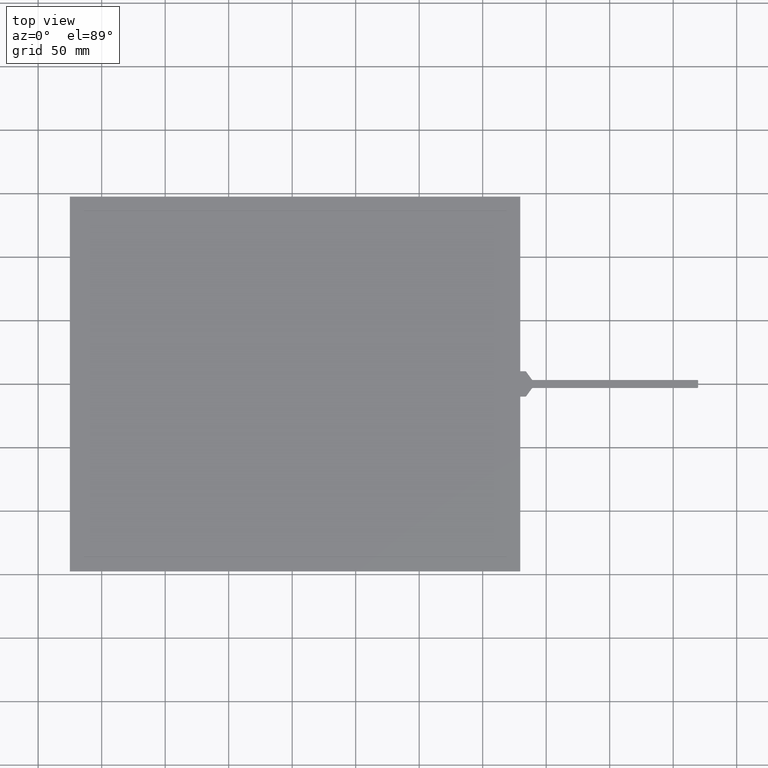
[diagram: clean part render]
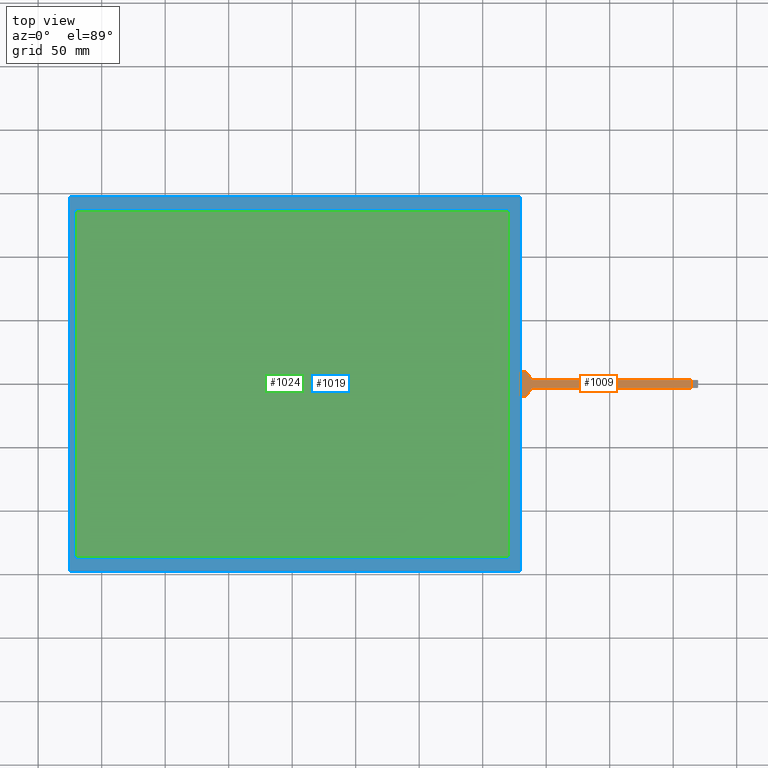
[diagram: same view with three faces highlighted in distinct colors, each labeled with its STEP entity id]
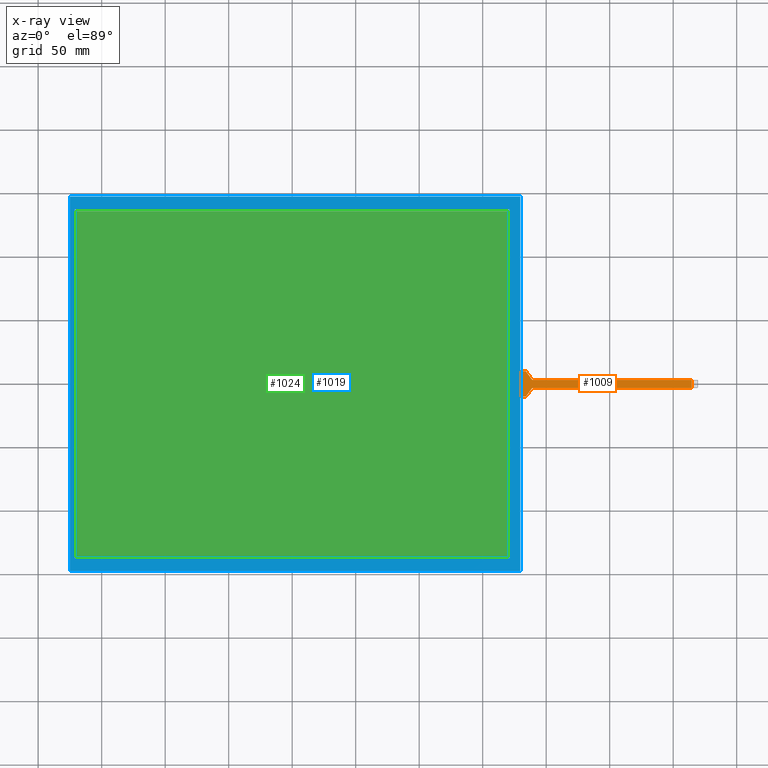
[diagram: x-ray of the same camera — body ghosted, the three highlighted faces saturated]
A machine part, top view with three faces highlighted in distinct colors.
The next image is the same camera in x-ray (body ghosted, the three faces saturated) — at least one of them is partly hidden behind the body in this view.
Their STEP definitions:

[orange] entity #1009 — the highlighted planar face has unit normal (0, 0, 1).
#77=PLANE('',#1092);
#128=FACE_OUTER_BOUND('',#179,.T.);
#179=EDGE_LOOP('',(#881,#882,#883,#884,#885,#886,#887,#888,#889,#890,#891,
#892));
#201=LINE('',#1375,#327);
#212=LINE('',#1401,#338);
#221=LINE('',#1425,#347);
#225=LINE('',#1434,#351);
#253=LINE('',#1497,#379);
#285=LINE('',#1561,#411);
#287=LINE('',#1566,#413);
#288=LINE('',#1568,#414);
#327=VECTOR('',#1121,10.);
#338=VECTOR('',#1140,10.);
#347=VECTOR('',#1161,10.);
#351=VECTOR('',#1171,10.);
#379=VECTOR('',#1217,10.);
#411=VECTOR('',#1283,10.);
#413=VECTOR('',#1291,10.);
#414=VECTOR('',#1294,10.);
#451=CIRCLE('',#1047,1.);
#454=CIRCLE('',#1052,1.);
#457=CIRCLE('',#1058,1.);
#458=CIRCLE('',#1061,1.);
#463=VERTEX_POINT('',#1365);
#464=VERTEX_POINT('',#1366);
#467=VERTEX_POINT('',#1374);
#475=VERTEX_POINT('',#1391);
#476=VERTEX_POINT('',#1393);
#478=VERTEX_POINT('',#1399);
#485=VERTEX_POINT('',#1418);
#486=VERTEX_POINT('',#1420);
#487=VERTEX_POINT('',#1424);
#488=VERTEX_POINT('',#1428);
#489=VERTEX_POINT('',#1429);
#515=VERTEX_POINT('',#1495);
#555=EDGE_CURVE('',#463,#464,#451,.T.);
#559=EDGE_CURVE('',#467,#464,#201,.T.);
#568=EDGE_CURVE('',#475,#476,#454,.T.);
#572=EDGE_CURVE('',#475,#478,#212,.T.);
#582=EDGE_CURVE('',#485,#486,#457,.T.);
#584=EDGE_CURVE('',#487,#486,#221,.T.);
#586=EDGE_CURVE('',#488,#489,#458,.T.);
#589=EDGE_CURVE('',#485,#489,#225,.T.);
#621=EDGE_CURVE('',#488,#515,#253,.T.);
#653=EDGE_CURVE('',#515,#467,#285,.T.);
#655=EDGE_CURVE('',#463,#476,#287,.T.);
#656=EDGE_CURVE('',#487,#478,#288,.T.);
#881=ORIENTED_EDGE('',*,*,#568,.F.);
#882=ORIENTED_EDGE('',*,*,#572,.T.);
#883=ORIENTED_EDGE('',*,*,#656,.F.);
#884=ORIENTED_EDGE('',*,*,#584,.T.);
#885=ORIENTED_EDGE('',*,*,#582,.F.);
#886=ORIENTED_EDGE('',*,*,#589,.T.);
#887=ORIENTED_EDGE('',*,*,#586,.F.);
#888=ORIENTED_EDGE('',*,*,#621,.T.);
#889=ORIENTED_EDGE('',*,*,#653,.T.);
#890=ORIENTED_EDGE('',*,*,#559,.T.);
#891=ORIENTED_EDGE('',*,*,#555,.F.);
#892=ORIENTED_EDGE('',*,*,#655,.T.);
#1009=ADVANCED_FACE('',(#128),#77,.T.);
#1047=AXIS2_PLACEMENT_3D('',#1367,#1113,#1114);
#1052=AXIS2_PLACEMENT_3D('',#1394,#1133,#1134);
#1058=AXIS2_PLACEMENT_3D('',#1421,#1156,#1157);
#1061=AXIS2_PLACEMENT_3D('',#1430,#1165,#1166);
#1092=AXIS2_PLACEMENT_3D('',#1567,#1292,#1293);
#1113=DIRECTION('center_axis',(0.,0.,1.));
#1114=DIRECTION('ref_axis',(-0.453354005316959,-0.891330548036513,0.));
#1121=DIRECTION('',(-1.,0.,0.));
#1133=DIRECTION('center_axis',(0.,0.,-1.));
#1134=DIRECTION('ref_axis',(0.453354005316927,0.891330548036529,0.));
#1140=DIRECTION('',(-1.,0.,0.));
#1156=DIRECTION('center_axis',(0.,0.,-1.));
#1157=DIRECTION('ref_axis',(0.453354005316927,-0.891330548036529,0.));
#1161=DIRECTION('',(1.,0.,0.));
#1165=DIRECTION('center_axis',(0.,0.,1.));
#1166=DIRECTION('ref_axis',(-0.453354005316959,0.891330548036513,0.));
#1171=DIRECTION('',(0.58894029172616,0.808176548027413,0.));
#1217=DIRECTION('',(1.,0.,0.));
#1283=DIRECTION('',(0.,1.,0.));
#1291=DIRECTION('',(-0.58894029172616,0.808176548027413,0.));
#1292=DIRECTION('center_axis',(0.,0.,1.));
#1293=DIRECTION('ref_axis',(1.,0.,0.));
#1294=DIRECTION('',(0.,1.,0.));
#1365=CARTESIAN_POINT('',(188.700449579862,3.53605970827385,-0.2));
#1366=CARTESIAN_POINT('',(189.508626127889,3.12500000000001,-0.2));
#1367=CARTESIAN_POINT('Origin',(189.508626127889,4.12500000000001,-0.2));
#1374=CARTESIAN_POINT('',(314.6,3.12500000000001,-0.2));
#1375=CARTESIAN_POINT('',(319.6,3.12500000000001,-0.2));
#1391=CARTESIAN_POINT('',(183.481373872111,10.,-0.2));
#1393=CARTESIAN_POINT('',(184.289550420138,9.58894029172617,-0.2));
#1394=CARTESIAN_POINT('Origin',(183.481373872111,9.00000000000001,-0.2));
#1399=CARTESIAN_POINT('',(179.6,10.,-0.2));
#1401=CARTESIAN_POINT('',(183.99,10.,-0.2));
#1418=CARTESIAN_POINT('',(184.289550420138,-9.58894029172615,-0.2));
#1420=CARTESIAN_POINT('',(183.481373872111,-9.99999999999999,-0.2));
#1421=CARTESIAN_POINT('Origin',(183.481373872111,-8.99999999999999,-0.2));
#1424=CARTESIAN_POINT('',(179.6,-9.99999999999999,-0.2));
#1425=CARTESIAN_POINT('',(179.6,-9.99999999999999,-0.2));
#1428=CARTESIAN_POINT('',(189.508626127889,-3.12499999999999,-0.2));
#1429=CARTESIAN_POINT('',(188.700449579862,-3.53605970827383,-0.2));
#1430=CARTESIAN_POINT('Origin',(189.508626127889,-4.12499999999999,-0.2));
#1434=CARTESIAN_POINT('',(183.99,-9.99999999999999,-0.2));
#1495=CARTESIAN_POINT('',(314.6,-3.12499999999999,-0.2));
#1497=CARTESIAN_POINT('',(189.,-3.12499999999999,-0.2));
#1561=CARTESIAN_POINT('',(314.6,-1.56249999999999,-0.2));
#1566=CARTESIAN_POINT('',(189.,3.12500000000001,-0.2));
#1567=CARTESIAN_POINT('Origin',(249.6,8.88178419700125E-15,-0.2));
#1568=CARTESIAN_POINT('',(179.6,73.75,-0.2));

[blue] entity #1019 — the highlighted planar face has unit normal (0, 0, 1).
#47=FACE_BOUND('',#191,.T.);
#87=PLANE('',#1102);
#138=FACE_OUTER_BOUND('',#190,.T.);
#190=EDGE_LOOP('',(#933,#934,#935,#936));
#191=EDGE_LOOP('',(#937,#938,#939,#940));
#301=LINE('',#1596,#427);
#305=LINE('',#1604,#431);
#308=LINE('',#1610,#434);
#311=LINE('',#1615,#437);
#313=LINE('',#1621,#439);
#314=LINE('',#1623,#440);
#315=LINE('',#1625,#441);
#316=LINE('',#1626,#442);
#427=VECTOR('',#1317,10.);
#431=VECTOR('',#1323,10.);
#434=VECTOR('',#1328,10.);
#437=VECTOR('',#1333,10.);
#439=VECTOR('',#1339,10.);
#440=VECTOR('',#1340,10.);
#441=VECTOR('',#1341,10.);
#442=VECTOR('',#1342,10.);
#539=VERTEX_POINT('',#1594);
#540=VERTEX_POINT('',#1595);
#543=VERTEX_POINT('',#1603);
#545=VERTEX_POINT('',#1609);
#547=VERTEX_POINT('',#1619);
#548=VERTEX_POINT('',#1620);
#549=VERTEX_POINT('',#1622);
#550=VERTEX_POINT('',#1624);
#669=EDGE_CURVE('',#539,#540,#301,.T.);
#673=EDGE_CURVE('',#543,#539,#305,.T.);
#676=EDGE_CURVE('',#545,#543,#308,.T.);
#679=EDGE_CURVE('',#540,#545,#311,.T.);
#681=EDGE_CURVE('',#547,#548,#313,.T.);
#682=EDGE_CURVE('',#548,#549,#314,.T.);
#683=EDGE_CURVE('',#549,#550,#315,.T.);
#684=EDGE_CURVE('',#550,#547,#316,.T.);
#933=ORIENTED_EDGE('',*,*,#681,.T.);
#934=ORIENTED_EDGE('',*,*,#682,.T.);
#935=ORIENTED_EDGE('',*,*,#683,.T.);
#936=ORIENTED_EDGE('',*,*,#684,.T.);
#937=ORIENTED_EDGE('',*,*,#669,.T.);
#938=ORIENTED_EDGE('',*,*,#679,.T.);
#939=ORIENTED_EDGE('',*,*,#676,.T.);
#940=ORIENTED_EDGE('',*,*,#673,.T.);
#1019=ADVANCED_FACE('',(#138,#47),#87,.T.);
#1102=AXIS2_PLACEMENT_3D('',#1618,#1337,#1338);
#1317=DIRECTION('',(-1.29217781290482E-16,1.,0.));
#1323=DIRECTION('',(-1.,-1.03722809727914E-16,0.));
#1328=DIRECTION('',(1.29217781290482E-16,-1.,0.));
#1333=DIRECTION('',(1.,-5.18614048639569E-17,0.));
#1337=DIRECTION('center_axis',(0.,0.,1.));
#1338=DIRECTION('ref_axis',(1.,0.,0.));
#1339=DIRECTION('',(-1.,0.,0.));
#1340=DIRECTION('',(1.20430972162729E-16,-1.,0.));
#1341=DIRECTION('',(1.,1.00189331043443E-16,0.));
#1342=DIRECTION('',(0.,1.,0.));
#1594=CARTESIAN_POINT('',(-171.26,-137.47,0.));
#1595=CARTESIAN_POINT('',(-171.26,137.47,0.));
#1596=CARTESIAN_POINT('',(-171.26,-68.735,0.));
#1603=CARTESIAN_POINT('',(171.26,-137.47,0.));
#1604=CARTESIAN_POINT('',(86.78,-137.47,0.));
#1609=CARTESIAN_POINT('',(171.26,137.47,0.));
#1610=CARTESIAN_POINT('',(171.26,68.735,0.));
#1615=CARTESIAN_POINT('',(-84.48,137.47,0.));
#1618=CARTESIAN_POINT('Origin',(2.29999999999999,0.,0.));
#1619=CARTESIAN_POINT('',(179.6,147.5,0.));
#1620=CARTESIAN_POINT('',(-175.,147.5,0.));
#1621=CARTESIAN_POINT('',(179.6,147.5,0.));
#1622=CARTESIAN_POINT('',(-175.,-147.5,0.));
#1623=CARTESIAN_POINT('',(-175.,147.5,0.));
#1624=CARTESIAN_POINT('',(179.6,-147.5,0.));
#1625=CARTESIAN_POINT('',(-175.,-147.5,0.));
#1626=CARTESIAN_POINT('',(179.6,-147.5,0.));

[green] entity #1024 — the highlighted planar face has unit normal (0, 0, 1).
#92=PLANE('',#1107);
#143=FACE_OUTER_BOUND('',#197,.T.);
#197=EDGE_LOOP('',(#961,#962,#963,#964));
#289=LINE('',#1572,#415);
#293=LINE('',#1580,#419);
#296=LINE('',#1586,#422);
#299=LINE('',#1591,#425);
#415=VECTOR('',#1297,10.);
#419=VECTOR('',#1303,10.);
#422=VECTOR('',#1308,10.);
#425=VECTOR('',#1313,10.);
#531=VERTEX_POINT('',#1570);
#532=VERTEX_POINT('',#1571);
#535=VERTEX_POINT('',#1579);
#537=VERTEX_POINT('',#1585);
#657=EDGE_CURVE('',#531,#532,#289,.T.);
#661=EDGE_CURVE('',#535,#531,#293,.T.);
#664=EDGE_CURVE('',#537,#535,#296,.T.);
#667=EDGE_CURVE('',#532,#537,#299,.T.);
#961=ORIENTED_EDGE('',*,*,#657,.T.);
#962=ORIENTED_EDGE('',*,*,#667,.T.);
#963=ORIENTED_EDGE('',*,*,#664,.T.);
#964=ORIENTED_EDGE('',*,*,#661,.T.);
#1024=ADVANCED_FACE('',(#143),#92,.T.);
#1107=AXIS2_PLACEMENT_3D('',#1643,#1359,#1360);
#1297=DIRECTION('',(1.,0.,0.));
#1303=DIRECTION('',(0.,-1.,0.));
#1308=DIRECTION('',(-1.,0.,0.));
#1313=DIRECTION('',(0.,1.,0.));
#1359=DIRECTION('center_axis',(0.,0.,1.));
#1360=DIRECTION('ref_axis',(1.,0.,0.));
#1570=CARTESIAN_POINT('',(-170.,-136.,0.));
#1571=CARTESIAN_POINT('',(170.,-136.,0.));
#1572=CARTESIAN_POINT('',(-83.85,-136.,0.));
#1579=CARTESIAN_POINT('',(-170.,136.,0.));
#1580=CARTESIAN_POINT('',(-170.,68.,0.));
#1585=CARTESIAN_POINT('',(170.,136.,0.));
#1586=CARTESIAN_POINT('',(86.15,136.,0.));
#1591=CARTESIAN_POINT('',(170.,-68.,0.));
#1643=CARTESIAN_POINT('Origin',(2.29999999999999,0.,0.));